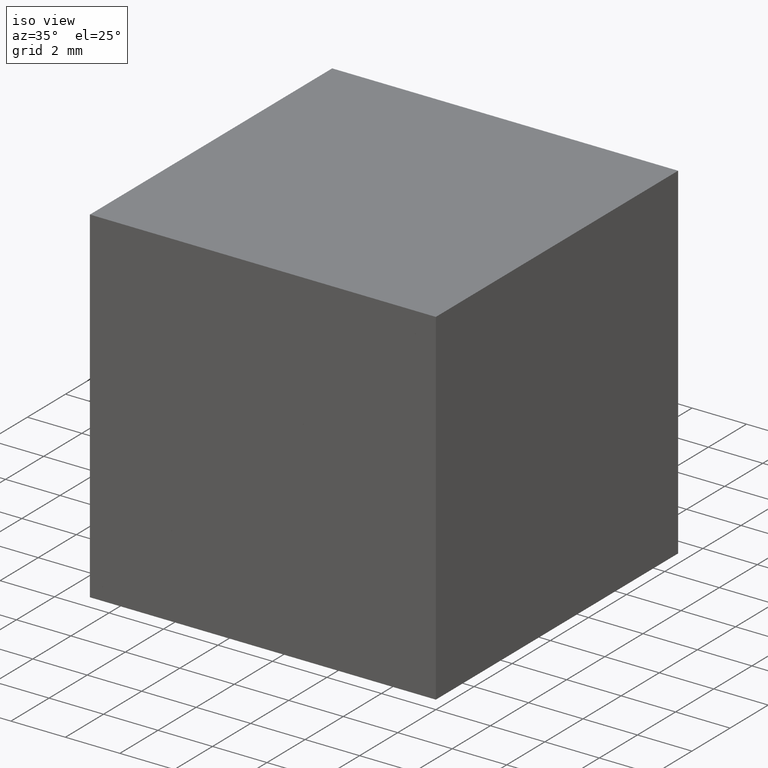
[diagram: clean part render]
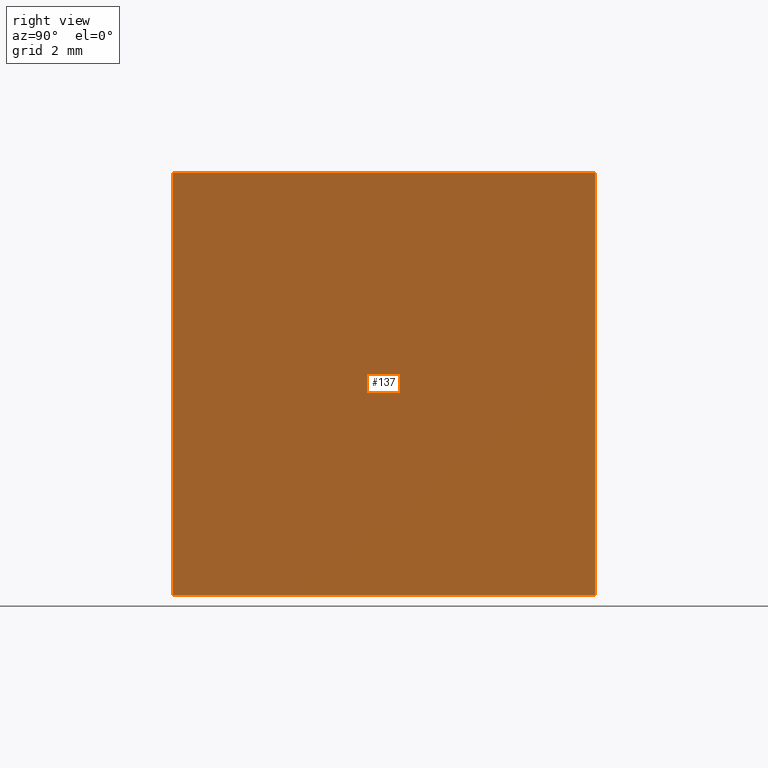
[diagram: tour spotlight — one face highlighted and labeled with its STEP entity id]
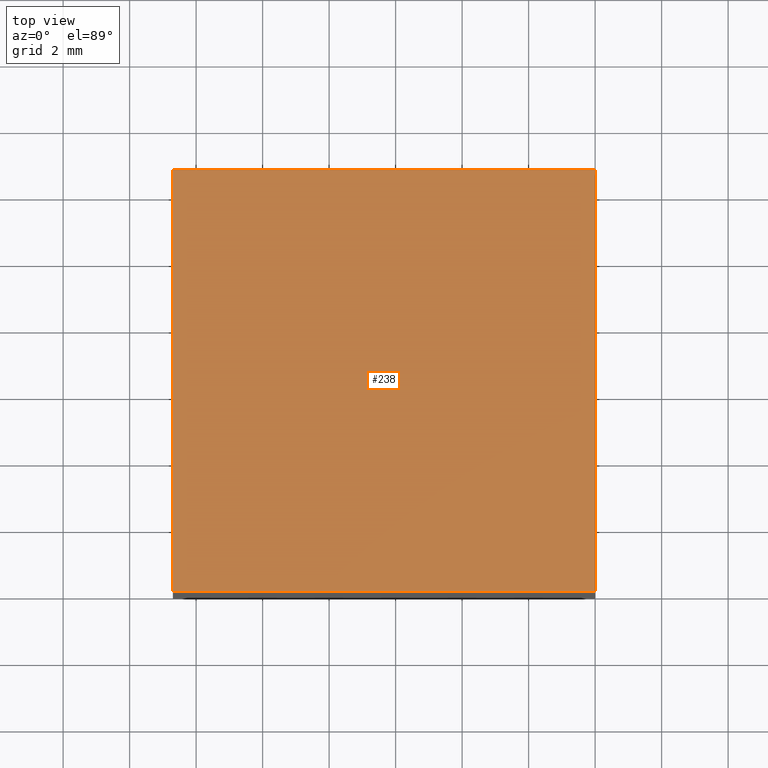
[diagram: tour spotlight — one face highlighted and labeled with its STEP entity id]
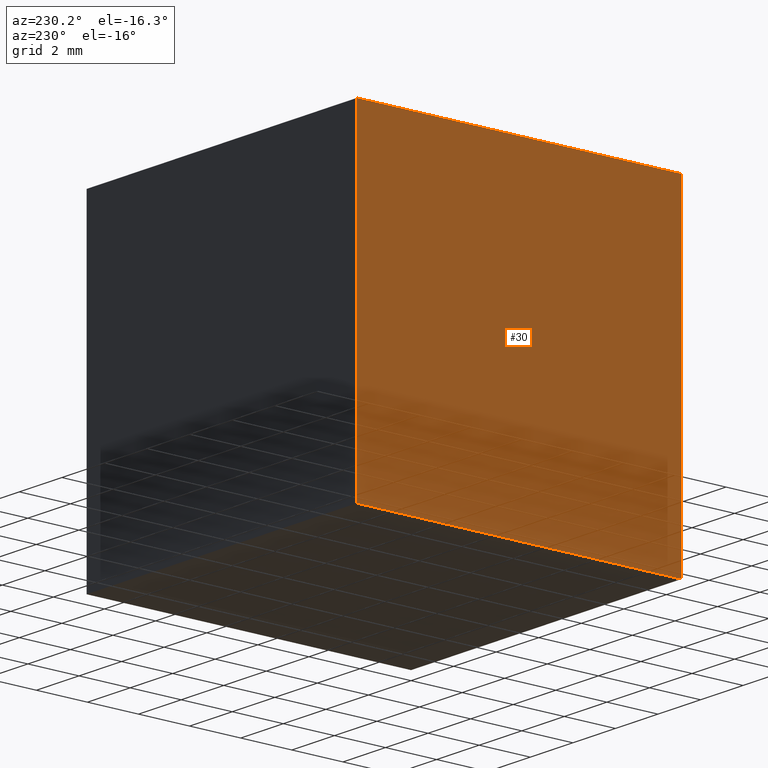
[diagram: tour spotlight — one face highlighted and labeled with its STEP entity id]
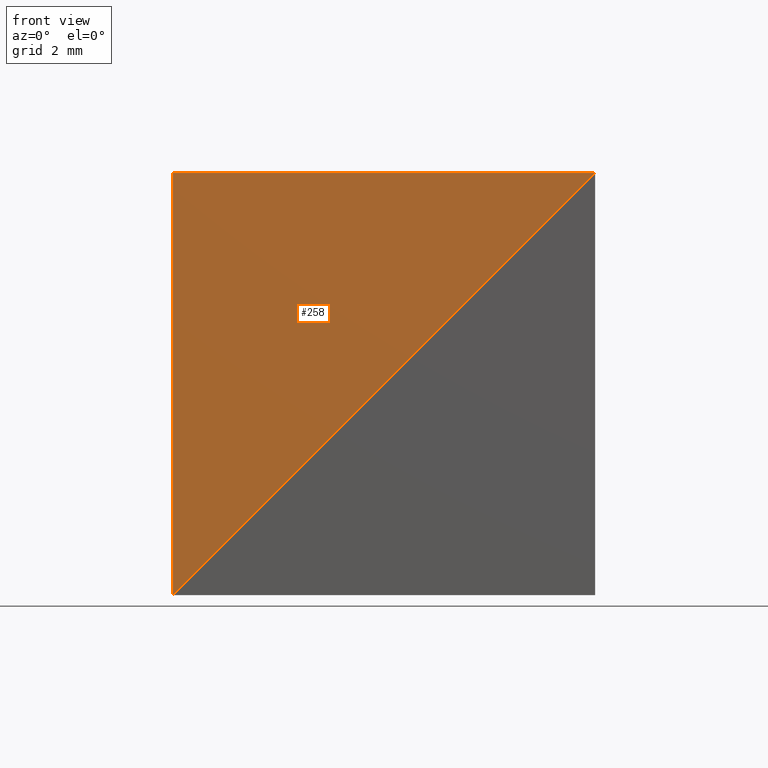
[diagram: tour spotlight — one face highlighted and labeled with its STEP entity id]
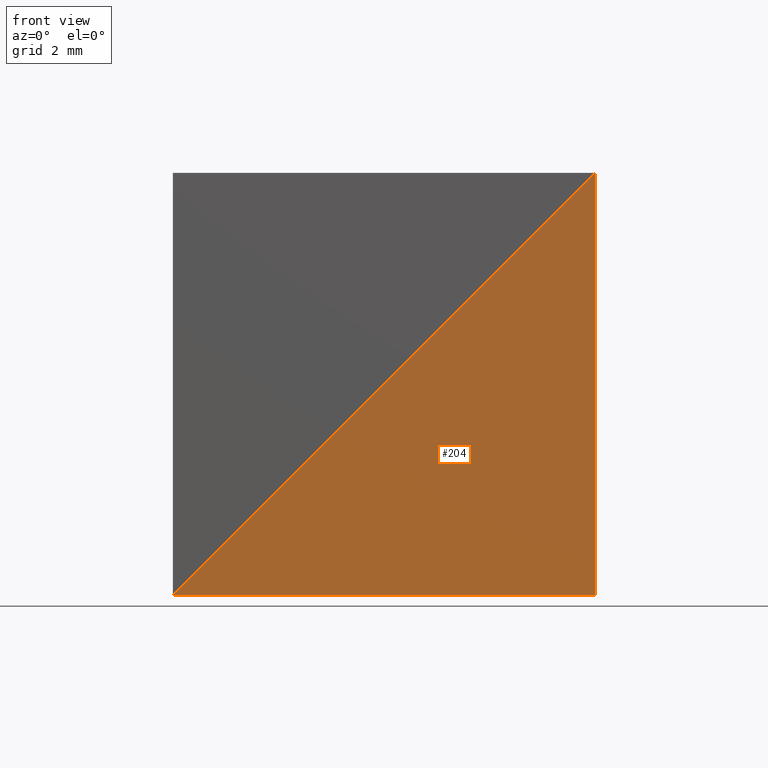
[diagram: tour spotlight — one face highlighted and labeled with its STEP entity id]
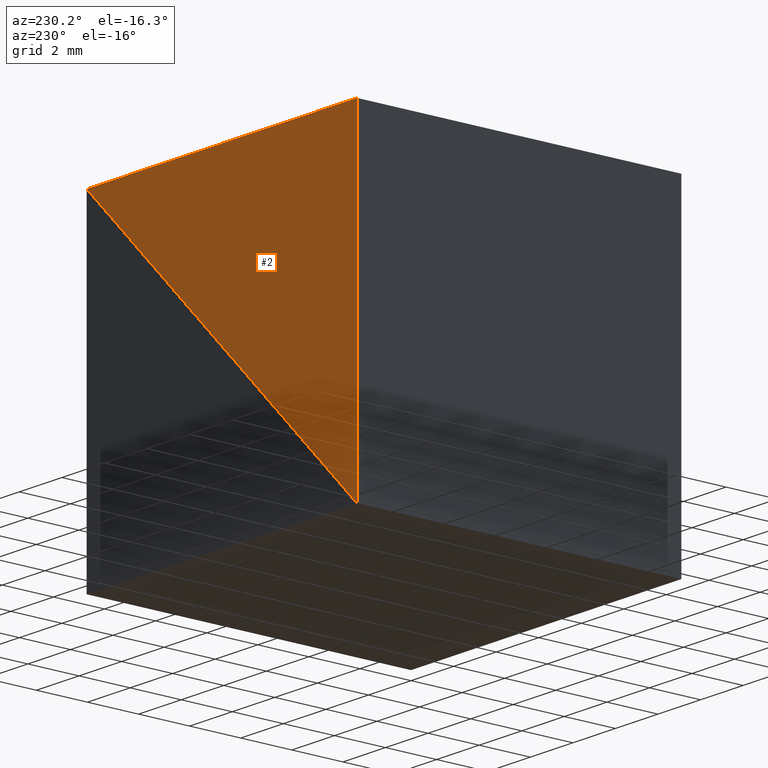
[diagram: tour spotlight — one face highlighted and labeled with its STEP entity id]
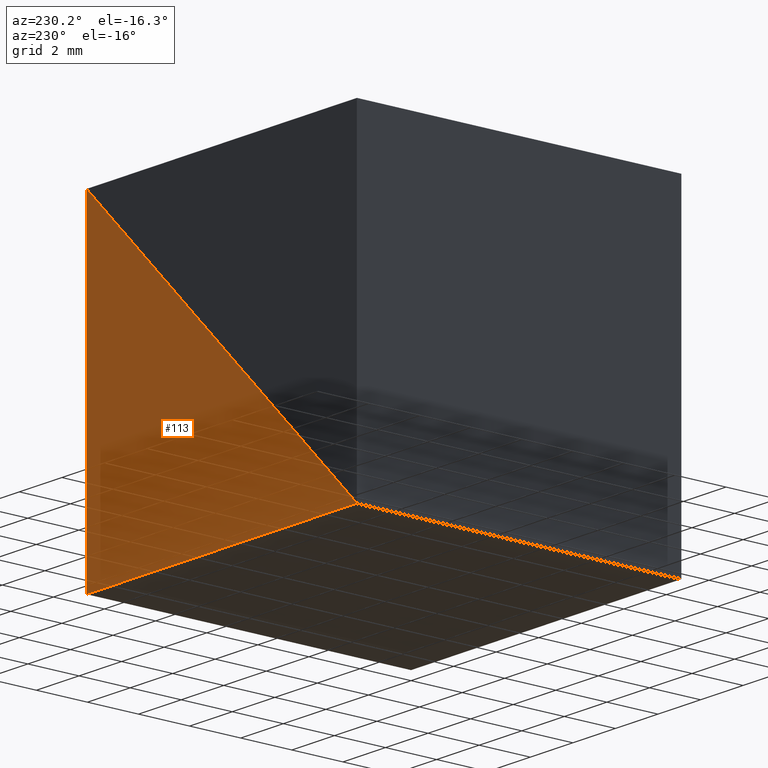
[diagram: tour spotlight — one face highlighted and labeled with its STEP entity id]
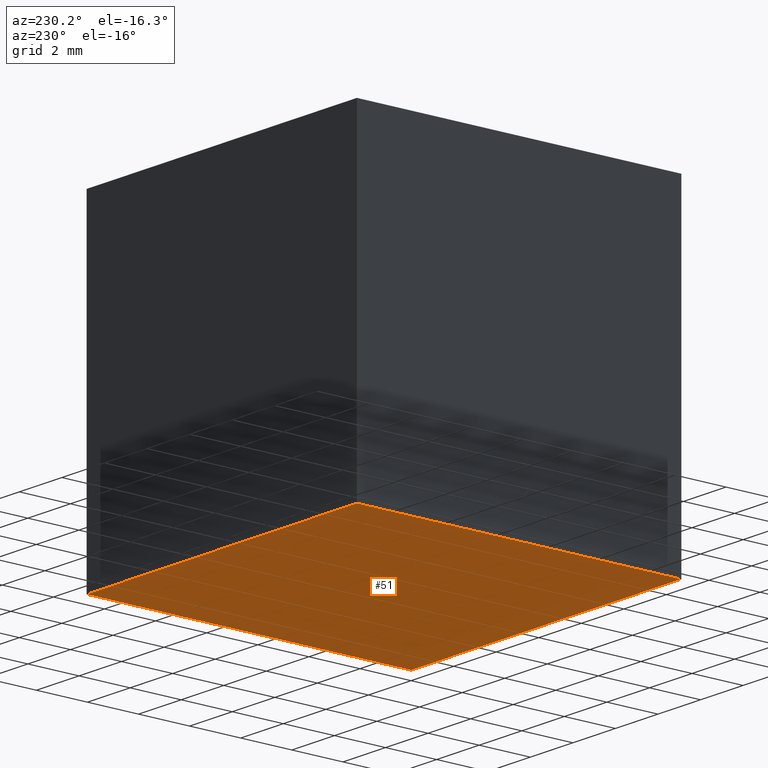
[diagram: tour spotlight — one face highlighted and labeled with its STEP entity id]
A machine part: a face-by-face anatomy tour. The part has 10 B-rep faces; the first image is the clean iso view, then the 8 largest visible faces are spotlighted one at a time (largest first), each with its STEP entity span.

Face 1 — right view, entity #137. In plain terms, the highlighted planar face has unit normal (-1, 0, 0).
Definition (entity closure, byte-faithful):
#3 = LINE ( 'NONE', #285, #12 ) ;
#12 = VECTOR ( 'NONE', #87, 1000.000000000000000 ) ;
#15 = ORIENTED_EDGE ( 'NONE', *, *, #135, .F. ) ;
#54 = CARTESIAN_POINT ( 'NONE',  ( 0.0000000000000000000, 12.69999999999999900, 0.0000000000000000000 ) ) ;
#67 = DIRECTION ( 'NONE',  ( 0.0000000000000000000, 0.0000000000000000000, -1.000000000000000000 ) ) ;
#72 = EDGE_LOOP ( 'NONE', ( #226, #81, #15, #183 ) ) ;
#81 = ORIENTED_EDGE ( 'NONE', *, *, #259, .F. ) ;
#87 = DIRECTION ( 'NONE',  ( -0.0000000000000000000, -1.000000000000000000, -0.0000000000000000000 ) ) ;
#96 = CARTESIAN_POINT ( 'NONE',  ( 0.0000000000000000000, 12.69999999999999900, 0.0000000000000000000 ) ) ;
#98 = VECTOR ( 'NONE', #67, 1000.000000000000000 ) ;
#116 = VECTOR ( 'NONE', #242, 1000.000000000000000 ) ;
#119 = DIRECTION ( 'NONE',  ( -0.0000000000000000000, -1.000000000000000000, -0.0000000000000000000 ) ) ;
#123 = VERTEX_POINT ( 'NONE', #267 ) ;
#135 = EDGE_CURVE ( 'NONE', #181, #245, #211, .T. ) ;
#137 = ADVANCED_FACE ( 'NONE', ( #155 ), #209, .F. ) ;
#139 = DIRECTION ( 'NONE',  ( 0.0000000000000000000, 0.0000000000000000000, 1.000000000000000000 ) ) ;
#155 = FACE_OUTER_BOUND ( 'NONE', #72, .T. ) ;
#166 = LINE ( 'NONE', #264, #299 ) ;
#181 = VERTEX_POINT ( 'NONE', #96 ) ;
#183 = ORIENTED_EDGE ( 'NONE', *, *, #193, .T. ) ;
#193 = EDGE_CURVE ( 'NONE', #181, #123, #3, .T. ) ;
#196 = AXIS2_PLACEMENT_3D ( 'NONE', #54, #283, #139 ) ;
#209 = PLANE ( 'NONE',  #196 ) ;
#211 = LINE ( 'NONE', #273, #98 ) ;
#220 = VERTEX_POINT ( 'NONE', #268 ) ;
#224 = CARTESIAN_POINT ( 'NONE',  ( 0.0000000000000000000, 0.0000000000000000000, 0.0000000000000000000 ) ) ;
#226 = ORIENTED_EDGE ( 'NONE', *, *, #228, .T. ) ;
#228 = EDGE_CURVE ( 'NONE', #123, #220, #260, .T. ) ;
#242 = DIRECTION ( 'NONE',  ( 0.0000000000000000000, 0.0000000000000000000, -1.000000000000000000 ) ) ;
#245 = VERTEX_POINT ( 'NONE', #266 ) ;
#259 = EDGE_CURVE ( 'NONE', #245, #220, #166, .T. ) ;
#260 = LINE ( 'NONE', #224, #116 ) ;
#264 = CARTESIAN_POINT ( 'NONE',  ( 0.0000000000000000000, 12.69999999999999900, -12.69999999999999900 ) ) ;
#266 = CARTESIAN_POINT ( 'NONE',  ( 0.0000000000000000000, 12.69999999999999900, -12.69999999999999900 ) ) ;
#267 = CARTESIAN_POINT ( 'NONE',  ( 0.0000000000000000000, 0.0000000000000000000, 0.0000000000000000000 ) ) ;
#268 = CARTESIAN_POINT ( 'NONE',  ( 0.0000000000000000000, 0.0000000000000000000, -12.69999999999999900 ) ) ;
#273 = CARTESIAN_POINT ( 'NONE',  ( 0.0000000000000000000, 12.69999999999999900, 0.0000000000000000000 ) ) ;
#283 = DIRECTION ( 'NONE',  ( -1.000000000000000000, 0.0000000000000000000, 0.0000000000000000000 ) ) ;
#285 = CARTESIAN_POINT ( 'NONE',  ( 0.0000000000000000000, 12.69999999999999900, 0.0000000000000000000 ) ) ;
#299 = VECTOR ( 'NONE', #119, 1000.000000000000000 ) ;

Face 2 — top view, entity #238. In plain terms, the highlighted planar face has unit normal (-0, 0, 1).
Definition (entity closure, byte-faithful):
#4 = VERTEX_POINT ( 'NONE', #122 ) ;
#20 = LINE ( 'NONE', #195, #35 ) ;
#28 = FACE_OUTER_BOUND ( 'NONE', #131, .T. ) ;
#32 = CARTESIAN_POINT ( 'NONE',  ( -12.69999999999999900, 12.69999999999999900, 0.0000000000000000000 ) ) ;
#34 = CARTESIAN_POINT ( 'NONE',  ( -12.69999999999999900, 0.0000000000000000000, 0.0000000000000000000 ) ) ;
#35 = VECTOR ( 'NONE', #171, 1000.000000000000000 ) ;
#36 = CARTESIAN_POINT ( 'NONE',  ( -12.69999999999999900, 12.69999999999999900, 0.0000000000000000000 ) ) ;
#42 = VERTEX_POINT ( 'NONE', #248 ) ;
#46 = CARTESIAN_POINT ( 'NONE',  ( -12.69999999999999900, 12.69999999999999900, 0.0000000000000000000 ) ) ;
#52 = ORIENTED_EDGE ( 'NONE', *, *, #114, .T. ) ;
#86 = ORIENTED_EDGE ( 'NONE', *, *, #176, .F. ) ;
#89 = DIRECTION ( 'NONE',  ( 0.0000000000000000000, -1.000000000000000000, 0.0000000000000000000 ) ) ;
#104 = VERTEX_POINT ( 'NONE', #194 ) ;
#114 = EDGE_CURVE ( 'NONE', #4, #246, #279, .T. ) ;
#120 = DIRECTION ( 'NONE',  ( -0.0000000000000000000, 0.0000000000000000000, 1.000000000000000000 ) ) ;
#122 = CARTESIAN_POINT ( 'NONE',  ( -12.69999999999999900, 12.69999999999999900, 0.0000000000000000000 ) ) ;
#131 = EDGE_LOOP ( 'NONE', ( #281, #86, #232, #52 ) ) ;
#134 = VECTOR ( 'NONE', #227, 1000.000000000000000 ) ;
#156 = EDGE_CURVE ( 'NONE', #104, #246, #162, .T. ) ;
#160 = CARTESIAN_POINT ( 'NONE',  ( -12.69999999999999900, 0.0000000000000000000, 0.0000000000000000000 ) ) ;
#162 = LINE ( 'NONE', #160, #184 ) ;
#168 = PLANE ( 'NONE',  #197 ) ;
#171 = DIRECTION ( 'NONE',  ( 0.0000000000000000000, -1.000000000000000000, 0.0000000000000000000 ) ) ;
#174 = EDGE_CURVE ( 'NONE', #42, #4, #257, .T. ) ;
#176 = EDGE_CURVE ( 'NONE', #42, #104, #20, .T. ) ;
#184 = VECTOR ( 'NONE', #240, 1000.000000000000000 ) ;
#194 = CARTESIAN_POINT ( 'NONE',  ( 0.0000000000000000000, 0.0000000000000000000, 0.0000000000000000000 ) ) ;
#195 = CARTESIAN_POINT ( 'NONE',  ( 0.0000000000000000000, 12.69999999999999900, 0.0000000000000000000 ) ) ;
#197 = AXIS2_PLACEMENT_3D ( 'NONE', #36, #120, #292 ) ;
#227 = DIRECTION ( 'NONE',  ( -1.000000000000000000, -0.0000000000000000000, -0.0000000000000000000 ) ) ;
#232 = ORIENTED_EDGE ( 'NONE', *, *, #174, .T. ) ;
#238 = ADVANCED_FACE ( 'NONE', ( #28 ), #168, .T. ) ;
#240 = DIRECTION ( 'NONE',  ( -1.000000000000000000, -0.0000000000000000000, -0.0000000000000000000 ) ) ;
#246 = VERTEX_POINT ( 'NONE', #34 ) ;
#248 = CARTESIAN_POINT ( 'NONE',  ( 0.0000000000000000000, 12.69999999999999900, 0.0000000000000000000 ) ) ;
#257 = LINE ( 'NONE', #32, #134 ) ;
#275 = VECTOR ( 'NONE', #89, 1000.000000000000000 ) ;
#279 = LINE ( 'NONE', #46, #275 ) ;
#281 = ORIENTED_EDGE ( 'NONE', *, *, #156, .F. ) ;
#292 = DIRECTION ( 'NONE',  ( 1.000000000000000000, 0.0000000000000000000, 0.0000000000000000000 ) ) ;

Face 3 — auxiliary view, entity #30. In plain terms, the highlighted planar face has unit normal (-1, 0, 0).
Definition (entity closure, byte-faithful):
#4 = VERTEX_POINT ( 'NONE', #122 ) ;
#6 = ORIENTED_EDGE ( 'NONE', *, *, #207, .F. ) ;
#8 = VECTOR ( 'NONE', #185, 1000.000000000000000 ) ;
#22 = AXIS2_PLACEMENT_3D ( 'NONE', #27, #173, #230 ) ;
#27 = CARTESIAN_POINT ( 'NONE',  ( -12.69999999999999900, 12.69999999999999900, -12.69999999999999800 ) ) ;
#30 = ADVANCED_FACE ( 'NONE', ( #263 ), #222, .T. ) ;
#33 = ORIENTED_EDGE ( 'NONE', *, *, #142, .T. ) ;
#34 = CARTESIAN_POINT ( 'NONE',  ( -12.69999999999999900, 0.0000000000000000000, 0.0000000000000000000 ) ) ;
#46 = CARTESIAN_POINT ( 'NONE',  ( -12.69999999999999900, 12.69999999999999900, 0.0000000000000000000 ) ) ;
#60 = VECTOR ( 'NONE', #121, 1000.000000000000000 ) ;
#62 = VERTEX_POINT ( 'NONE', #151 ) ;
#70 = VECTOR ( 'NONE', #271, 1000.000000000000000 ) ;
#79 = CARTESIAN_POINT ( 'NONE',  ( -12.69999999999999900, 12.69999999999999900, -12.69999999999999800 ) ) ;
#89 = DIRECTION ( 'NONE',  ( 0.0000000000000000000, -1.000000000000000000, 0.0000000000000000000 ) ) ;
#93 = LINE ( 'NONE', #79, #8 ) ;
#114 = EDGE_CURVE ( 'NONE', #4, #246, #279, .T. ) ;
#121 = DIRECTION ( 'NONE',  ( -0.0000000000000000000, -0.0000000000000000000, -1.000000000000000000 ) ) ;
#122 = CARTESIAN_POINT ( 'NONE',  ( -12.69999999999999900, 12.69999999999999900, 0.0000000000000000000 ) ) ;
#126 = EDGE_LOOP ( 'NONE', ( #6, #249, #33, #132 ) ) ;
#132 = ORIENTED_EDGE ( 'NONE', *, *, #206, .T. ) ;
#142 = EDGE_CURVE ( 'NONE', #4, #234, #93, .T. ) ;
#143 = CARTESIAN_POINT ( 'NONE',  ( -12.69999999999999900, -0.0000000000000000000, -12.69999999999999800 ) ) ;
#151 = CARTESIAN_POINT ( 'NONE',  ( -12.69999999999999900, -0.0000000000000000000, -12.69999999999999800 ) ) ;
#173 = DIRECTION ( 'NONE',  ( -1.000000000000000000, 0.0000000000000000000, 0.0000000000000000000 ) ) ;
#175 = LINE ( 'NONE', #188, #70 ) ;
#180 = LINE ( 'NONE', #143, #60 ) ;
#185 = DIRECTION ( 'NONE',  ( -0.0000000000000000000, -0.0000000000000000000, -1.000000000000000000 ) ) ;
#186 = CARTESIAN_POINT ( 'NONE',  ( -12.69999999999999900, 12.69999999999999900, -12.69999999999999800 ) ) ;
#188 = CARTESIAN_POINT ( 'NONE',  ( -12.69999999999999900, 12.69999999999999900, -12.69999999999999800 ) ) ;
#206 = EDGE_CURVE ( 'NONE', #234, #62, #175, .T. ) ;
#207 = EDGE_CURVE ( 'NONE', #246, #62, #180, .T. ) ;
#222 = PLANE ( 'NONE',  #22 ) ;
#230 = DIRECTION ( 'NONE',  ( 0.0000000000000000000, 0.0000000000000000000, 1.000000000000000000 ) ) ;
#234 = VERTEX_POINT ( 'NONE', #186 ) ;
#246 = VERTEX_POINT ( 'NONE', #34 ) ;
#249 = ORIENTED_EDGE ( 'NONE', *, *, #114, .F. ) ;
#263 = FACE_OUTER_BOUND ( 'NONE', #126, .T. ) ;
#271 = DIRECTION ( 'NONE',  ( 0.0000000000000000000, -1.000000000000000000, 0.0000000000000000000 ) ) ;
#275 = VECTOR ( 'NONE', #89, 1000.000000000000000 ) ;
#279 = LINE ( 'NONE', #46, #275 ) ;

Face 4 — front view, entity #258. In plain terms, the highlighted planar face has unit normal (0, 1, 0).
Definition (entity closure, byte-faithful):
#1 = ORIENTED_EDGE ( 'NONE', *, *, #207, .T. ) ;
#7 = CARTESIAN_POINT ( 'NONE',  ( 0.0000000000000000000, 0.0000000000000000000, 0.0000000000000000000 ) ) ;
#11 = PLANE ( 'NONE',  #239 ) ;
#34 = CARTESIAN_POINT ( 'NONE',  ( -12.69999999999999900, 0.0000000000000000000, 0.0000000000000000000 ) ) ;
#40 = ORIENTED_EDGE ( 'NONE', *, *, #156, .T. ) ;
#50 = LINE ( 'NONE', #274, #74 ) ;
#60 = VECTOR ( 'NONE', #121, 1000.000000000000000 ) ;
#62 = VERTEX_POINT ( 'NONE', #151 ) ;
#74 = VECTOR ( 'NONE', #270, 1000.000000000000000 ) ;
#104 = VERTEX_POINT ( 'NONE', #194 ) ;
#117 = DIRECTION ( 'NONE',  ( 0.0000000000000000000, 1.000000000000000000, 0.0000000000000000000 ) ) ;
#121 = DIRECTION ( 'NONE',  ( -0.0000000000000000000, -0.0000000000000000000, -1.000000000000000000 ) ) ;
#141 = DIRECTION ( 'NONE',  ( 0.0000000000000000000, -0.0000000000000000000, 1.000000000000000000 ) ) ;
#143 = CARTESIAN_POINT ( 'NONE',  ( -12.69999999999999900, -0.0000000000000000000, -12.69999999999999800 ) ) ;
#145 = EDGE_CURVE ( 'NONE', #62, #104, #50, .T. ) ;
#151 = CARTESIAN_POINT ( 'NONE',  ( -12.69999999999999900, -0.0000000000000000000, -12.69999999999999800 ) ) ;
#156 = EDGE_CURVE ( 'NONE', #104, #246, #162, .T. ) ;
#160 = CARTESIAN_POINT ( 'NONE',  ( -12.69999999999999900, 0.0000000000000000000, 0.0000000000000000000 ) ) ;
#162 = LINE ( 'NONE', #160, #184 ) ;
#180 = LINE ( 'NONE', #143, #60 ) ;
#184 = VECTOR ( 'NONE', #240, 1000.000000000000000 ) ;
#194 = CARTESIAN_POINT ( 'NONE',  ( 0.0000000000000000000, 0.0000000000000000000, 0.0000000000000000000 ) ) ;
#207 = EDGE_CURVE ( 'NONE', #246, #62, #180, .T. ) ;
#239 = AXIS2_PLACEMENT_3D ( 'NONE', #7, #117, #141 ) ;
#240 = DIRECTION ( 'NONE',  ( -1.000000000000000000, -0.0000000000000000000, -0.0000000000000000000 ) ) ;
#246 = VERTEX_POINT ( 'NONE', #34 ) ;
#247 = FACE_OUTER_BOUND ( 'NONE', #284, .T. ) ;
#258 = ADVANCED_FACE ( 'NONE', ( #247 ), #11, .F. ) ;
#270 = DIRECTION ( 'NONE',  ( 0.7071067811865475700, 0.0000000000000000000, 0.7071067811865474600 ) ) ;
#274 = CARTESIAN_POINT ( 'NONE',  ( 0.0000000000000000000, 0.0000000000000000000, 0.0000000000000000000 ) ) ;
#284 = EDGE_LOOP ( 'NONE', ( #286, #40, #1 ) ) ;
#286 = ORIENTED_EDGE ( 'NONE', *, *, #145, .T. ) ;

Face 5 — front view, entity #204. In plain terms, the highlighted planar face has unit normal (-0, 1, 0).
Definition (entity closure, byte-faithful):
#13 = ORIENTED_EDGE ( 'NONE', *, *, #228, .F. ) ;
#31 = ORIENTED_EDGE ( 'NONE', *, *, #130, .F. ) ;
#37 = DIRECTION ( 'NONE',  ( 0.0000000000000000000, -0.0000000000000000000, 1.000000000000000000 ) ) ;
#43 = LINE ( 'NONE', #152, #223 ) ;
#47 = EDGE_LOOP ( 'NONE', ( #31, #297, #13 ) ) ;
#56 = CARTESIAN_POINT ( 'NONE',  ( -12.69999999999999900, 0.0000000000000000000, -12.69999999999999800 ) ) ;
#61 = DIRECTION ( 'NONE',  ( 0.7071067811865475700, 0.0000000000000000000, 0.7071067811865474600 ) ) ;
#82 = PLANE ( 'NONE',  #164 ) ;
#109 = LINE ( 'NONE', #289, #290 ) ;
#116 = VECTOR ( 'NONE', #242, 1000.000000000000000 ) ;
#123 = VERTEX_POINT ( 'NONE', #267 ) ;
#130 = EDGE_CURVE ( 'NONE', #291, #123, #43, .T. ) ;
#152 = CARTESIAN_POINT ( 'NONE',  ( -12.69999999999999900, 0.0000000000000000000, -12.69999999999999800 ) ) ;
#164 = AXIS2_PLACEMENT_3D ( 'NONE', #251, #216, #37 ) ;
#165 = DIRECTION ( 'NONE',  ( -1.000000000000000000, 0.0000000000000000000, 1.365923996832131600E-016 ) ) ;
#189 = FACE_OUTER_BOUND ( 'NONE', #47, .T. ) ;
#204 = ADVANCED_FACE ( 'NONE', ( #189 ), #82, .F. ) ;
#216 = DIRECTION ( 'NONE',  ( -0.0000000000000000000, 1.000000000000000000, 0.0000000000000000000 ) ) ;
#220 = VERTEX_POINT ( 'NONE', #268 ) ;
#223 = VECTOR ( 'NONE', #61, 1000.000000000000000 ) ;
#224 = CARTESIAN_POINT ( 'NONE',  ( 0.0000000000000000000, 0.0000000000000000000, 0.0000000000000000000 ) ) ;
#228 = EDGE_CURVE ( 'NONE', #123, #220, #260, .T. ) ;
#242 = DIRECTION ( 'NONE',  ( 0.0000000000000000000, 0.0000000000000000000, -1.000000000000000000 ) ) ;
#251 = CARTESIAN_POINT ( 'NONE',  ( 0.0000000000000000000, 0.0000000000000000000, 0.0000000000000000000 ) ) ;
#260 = LINE ( 'NONE', #224, #116 ) ;
#267 = CARTESIAN_POINT ( 'NONE',  ( 0.0000000000000000000, 0.0000000000000000000, 0.0000000000000000000 ) ) ;
#268 = CARTESIAN_POINT ( 'NONE',  ( 0.0000000000000000000, 0.0000000000000000000, -12.69999999999999900 ) ) ;
#276 = EDGE_CURVE ( 'NONE', #220, #291, #109, .T. ) ;
#289 = CARTESIAN_POINT ( 'NONE',  ( 0.0000000000000000000, 0.0000000000000000000, -12.69999999999999900 ) ) ;
#290 = VECTOR ( 'NONE', #165, 1000.000000000000000 ) ;
#291 = VERTEX_POINT ( 'NONE', #56 ) ;
#297 = ORIENTED_EDGE ( 'NONE', *, *, #276, .F. ) ;

Face 6 — auxiliary view, entity #2. In plain terms, the highlighted planar face has unit normal (0, 1, 0).
Definition (entity closure, byte-faithful):
#2 = ADVANCED_FACE ( 'NONE', ( #19 ), #66, .T. ) ;
#4 = VERTEX_POINT ( 'NONE', #122 ) ;
#8 = VECTOR ( 'NONE', #185, 1000.000000000000000 ) ;
#19 = FACE_OUTER_BOUND ( 'NONE', #100, .T. ) ;
#26 = AXIS2_PLACEMENT_3D ( 'NONE', #65, #229, #44 ) ;
#32 = CARTESIAN_POINT ( 'NONE',  ( -12.69999999999999900, 12.69999999999999900, 0.0000000000000000000 ) ) ;
#42 = VERTEX_POINT ( 'NONE', #248 ) ;
#44 = DIRECTION ( 'NONE',  ( 0.0000000000000000000, -0.0000000000000000000, 1.000000000000000000 ) ) ;
#65 = CARTESIAN_POINT ( 'NONE',  ( 0.0000000000000000000, 12.69999999999999900, 0.0000000000000000000 ) ) ;
#66 = PLANE ( 'NONE',  #26 ) ;
#69 = CARTESIAN_POINT ( 'NONE',  ( 0.0000000000000000000, 12.69999999999999900, 0.0000000000000000000 ) ) ;
#71 = ORIENTED_EDGE ( 'NONE', *, *, #174, .F. ) ;
#77 = VECTOR ( 'NONE', #88, 1000.000000000000000 ) ;
#79 = CARTESIAN_POINT ( 'NONE',  ( -12.69999999999999900, 12.69999999999999900, -12.69999999999999800 ) ) ;
#88 = DIRECTION ( 'NONE',  ( 0.7071067811865475700, 0.0000000000000000000, 0.7071067811865474600 ) ) ;
#93 = LINE ( 'NONE', #79, #8 ) ;
#100 = EDGE_LOOP ( 'NONE', ( #154, #153, #71 ) ) ;
#122 = CARTESIAN_POINT ( 'NONE',  ( -12.69999999999999900, 12.69999999999999900, 0.0000000000000000000 ) ) ;
#127 = LINE ( 'NONE', #69, #77 ) ;
#134 = VECTOR ( 'NONE', #227, 1000.000000000000000 ) ;
#142 = EDGE_CURVE ( 'NONE', #4, #234, #93, .T. ) ;
#153 = ORIENTED_EDGE ( 'NONE', *, *, #142, .F. ) ;
#154 = ORIENTED_EDGE ( 'NONE', *, *, #157, .F. ) ;
#157 = EDGE_CURVE ( 'NONE', #234, #42, #127, .T. ) ;
#174 = EDGE_CURVE ( 'NONE', #42, #4, #257, .T. ) ;
#185 = DIRECTION ( 'NONE',  ( -0.0000000000000000000, -0.0000000000000000000, -1.000000000000000000 ) ) ;
#186 = CARTESIAN_POINT ( 'NONE',  ( -12.69999999999999900, 12.69999999999999900, -12.69999999999999800 ) ) ;
#227 = DIRECTION ( 'NONE',  ( -1.000000000000000000, -0.0000000000000000000, -0.0000000000000000000 ) ) ;
#229 = DIRECTION ( 'NONE',  ( 0.0000000000000000000, 1.000000000000000000, 0.0000000000000000000 ) ) ;
#234 = VERTEX_POINT ( 'NONE', #186 ) ;
#248 = CARTESIAN_POINT ( 'NONE',  ( 0.0000000000000000000, 12.69999999999999900, 0.0000000000000000000 ) ) ;
#257 = LINE ( 'NONE', #32, #134 ) ;

Face 7 — auxiliary view, entity #113. In plain terms, the highlighted planar face has unit normal (-0, 1, 0).
Definition (entity closure, byte-faithful):
#23 = CARTESIAN_POINT ( 'NONE',  ( 0.0000000000000000000, 12.69999999999999900, 0.0000000000000000000 ) ) ;
#53 = FACE_OUTER_BOUND ( 'NONE', #256, .T. ) ;
#67 = DIRECTION ( 'NONE',  ( 0.0000000000000000000, 0.0000000000000000000, -1.000000000000000000 ) ) ;
#75 = LINE ( 'NONE', #105, #253 ) ;
#80 = DIRECTION ( 'NONE',  ( -1.000000000000000000, 0.0000000000000000000, 1.365923996832131600E-016 ) ) ;
#96 = CARTESIAN_POINT ( 'NONE',  ( 0.0000000000000000000, 12.69999999999999900, 0.0000000000000000000 ) ) ;
#98 = VECTOR ( 'NONE', #67, 1000.000000000000000 ) ;
#105 = CARTESIAN_POINT ( 'NONE',  ( -12.69999999999999900, 12.69999999999999900, -12.69999999999999800 ) ) ;
#108 = DIRECTION ( 'NONE',  ( 0.0000000000000000000, -0.0000000000000000000, 1.000000000000000000 ) ) ;
#113 = ADVANCED_FACE ( 'NONE', ( #53 ), #129, .T. ) ;
#129 = PLANE ( 'NONE',  #163 ) ;
#135 = EDGE_CURVE ( 'NONE', #181, #245, #211, .T. ) ;
#149 = DIRECTION ( 'NONE',  ( 0.7071067811865475700, 0.0000000000000000000, 0.7071067811865474600 ) ) ;
#158 = ORIENTED_EDGE ( 'NONE', *, *, #135, .T. ) ;
#163 = AXIS2_PLACEMENT_3D ( 'NONE', #23, #221, #108 ) ;
#167 = ORIENTED_EDGE ( 'NONE', *, *, #243, .T. ) ;
#181 = VERTEX_POINT ( 'NONE', #96 ) ;
#182 = VECTOR ( 'NONE', #80, 1000.000000000000000 ) ;
#187 = EDGE_CURVE ( 'NONE', #203, #181, #75, .T. ) ;
#203 = VERTEX_POINT ( 'NONE', #244 ) ;
#211 = LINE ( 'NONE', #273, #98 ) ;
#214 = CARTESIAN_POINT ( 'NONE',  ( 0.0000000000000000000, 12.69999999999999900, -12.69999999999999900 ) ) ;
#221 = DIRECTION ( 'NONE',  ( -0.0000000000000000000, 1.000000000000000000, 0.0000000000000000000 ) ) ;
#243 = EDGE_CURVE ( 'NONE', #245, #203, #255, .T. ) ;
#244 = CARTESIAN_POINT ( 'NONE',  ( -12.69999999999999900, 12.69999999999999900, -12.69999999999999800 ) ) ;
#245 = VERTEX_POINT ( 'NONE', #266 ) ;
#253 = VECTOR ( 'NONE', #149, 1000.000000000000000 ) ;
#255 = LINE ( 'NONE', #214, #182 ) ;
#256 = EDGE_LOOP ( 'NONE', ( #272, #158, #167 ) ) ;
#266 = CARTESIAN_POINT ( 'NONE',  ( 0.0000000000000000000, 12.69999999999999900, -12.69999999999999900 ) ) ;
#272 = ORIENTED_EDGE ( 'NONE', *, *, #187, .T. ) ;
#273 = CARTESIAN_POINT ( 'NONE',  ( 0.0000000000000000000, 12.69999999999999900, 0.0000000000000000000 ) ) ;

Face 8 — auxiliary view, entity #51. In plain terms, the highlighted planar face has unit normal (0, -0, 1).
Definition (entity closure, byte-faithful):
#16 = LINE ( 'NONE', #101, #190 ) ;
#48 = AXIS2_PLACEMENT_3D ( 'NONE', #219, #110, #225 ) ;
#51 = ADVANCED_FACE ( 'NONE', ( #133 ), #85, .F. ) ;
#55 = DIRECTION ( 'NONE',  ( -0.0000000000000000000, -1.000000000000000000, -0.0000000000000000000 ) ) ;
#56 = CARTESIAN_POINT ( 'NONE',  ( -12.69999999999999900, 0.0000000000000000000, -12.69999999999999800 ) ) ;
#59 = EDGE_LOOP ( 'NONE', ( #205, #208, #76, #73 ) ) ;
#73 = ORIENTED_EDGE ( 'NONE', *, *, #259, .T. ) ;
#76 = ORIENTED_EDGE ( 'NONE', *, *, #243, .F. ) ;
#80 = DIRECTION ( 'NONE',  ( -1.000000000000000000, 0.0000000000000000000, 1.365923996832131600E-016 ) ) ;
#85 = PLANE ( 'NONE',  #48 ) ;
#101 = CARTESIAN_POINT ( 'NONE',  ( -12.69999999999999900, 12.69999999999999900, -12.69999999999999800 ) ) ;
#109 = LINE ( 'NONE', #289, #290 ) ;
#110 = DIRECTION ( 'NONE',  ( 1.365923996832131600E-016, -0.0000000000000000000, 1.000000000000000000 ) ) ;
#119 = DIRECTION ( 'NONE',  ( -0.0000000000000000000, -1.000000000000000000, -0.0000000000000000000 ) ) ;
#133 = FACE_OUTER_BOUND ( 'NONE', #59, .T. ) ;
#165 = DIRECTION ( 'NONE',  ( -1.000000000000000000, 0.0000000000000000000, 1.365923996832131600E-016 ) ) ;
#166 = LINE ( 'NONE', #264, #299 ) ;
#182 = VECTOR ( 'NONE', #80, 1000.000000000000000 ) ;
#190 = VECTOR ( 'NONE', #55, 1000.000000000000000 ) ;
#203 = VERTEX_POINT ( 'NONE', #244 ) ;
#205 = ORIENTED_EDGE ( 'NONE', *, *, #276, .T. ) ;
#208 = ORIENTED_EDGE ( 'NONE', *, *, #233, .F. ) ;
#214 = CARTESIAN_POINT ( 'NONE',  ( 0.0000000000000000000, 12.69999999999999900, -12.69999999999999900 ) ) ;
#219 = CARTESIAN_POINT ( 'NONE',  ( 0.0000000000000000000, 12.69999999999999900, -12.69999999999999900 ) ) ;
#220 = VERTEX_POINT ( 'NONE', #268 ) ;
#225 = DIRECTION ( 'NONE',  ( 1.000000000000000000, 0.0000000000000000000, -1.365923996832131600E-016 ) ) ;
#233 = EDGE_CURVE ( 'NONE', #203, #291, #16, .T. ) ;
#243 = EDGE_CURVE ( 'NONE', #245, #203, #255, .T. ) ;
#244 = CARTESIAN_POINT ( 'NONE',  ( -12.69999999999999900, 12.69999999999999900, -12.69999999999999800 ) ) ;
#245 = VERTEX_POINT ( 'NONE', #266 ) ;
#255 = LINE ( 'NONE', #214, #182 ) ;
#259 = EDGE_CURVE ( 'NONE', #245, #220, #166, .T. ) ;
#264 = CARTESIAN_POINT ( 'NONE',  ( 0.0000000000000000000, 12.69999999999999900, -12.69999999999999900 ) ) ;
#266 = CARTESIAN_POINT ( 'NONE',  ( 0.0000000000000000000, 12.69999999999999900, -12.69999999999999900 ) ) ;
#268 = CARTESIAN_POINT ( 'NONE',  ( 0.0000000000000000000, 0.0000000000000000000, -12.69999999999999900 ) ) ;
#276 = EDGE_CURVE ( 'NONE', #220, #291, #109, .T. ) ;
#289 = CARTESIAN_POINT ( 'NONE',  ( 0.0000000000000000000, 0.0000000000000000000, -12.69999999999999900 ) ) ;
#290 = VECTOR ( 'NONE', #165, 1000.000000000000000 ) ;
#291 = VERTEX_POINT ( 'NONE', #56 ) ;
#299 = VECTOR ( 'NONE', #119, 1000.000000000000000 ) ;